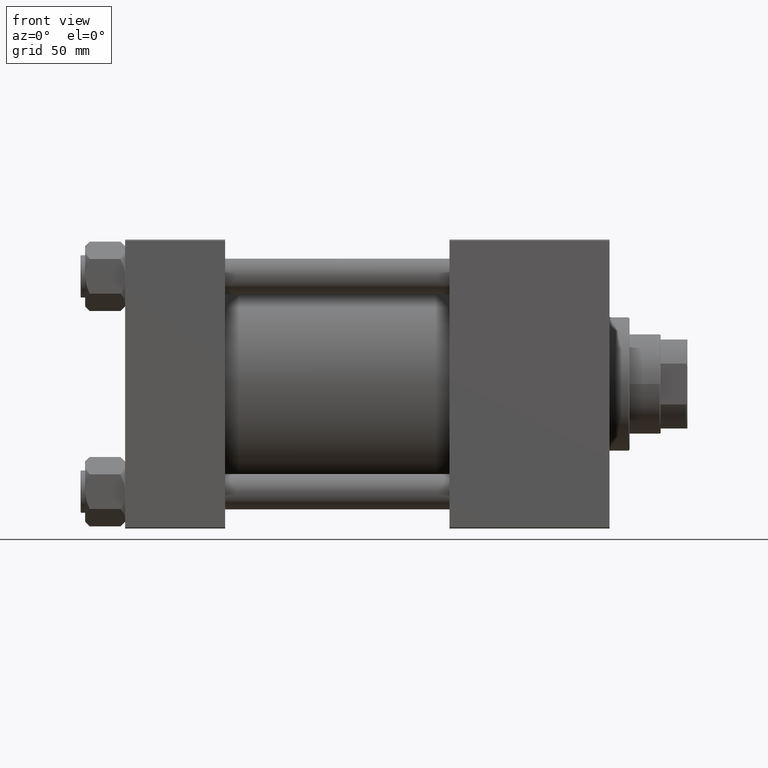
[diagram: clean part render]
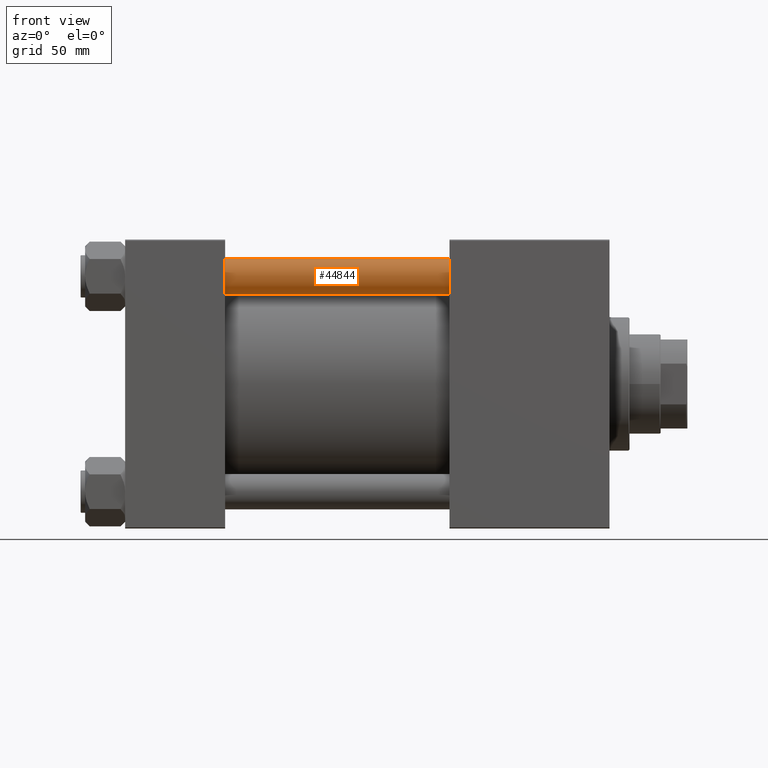
[diagram: same view with one face highlighted and labeled with its STEP entity id]
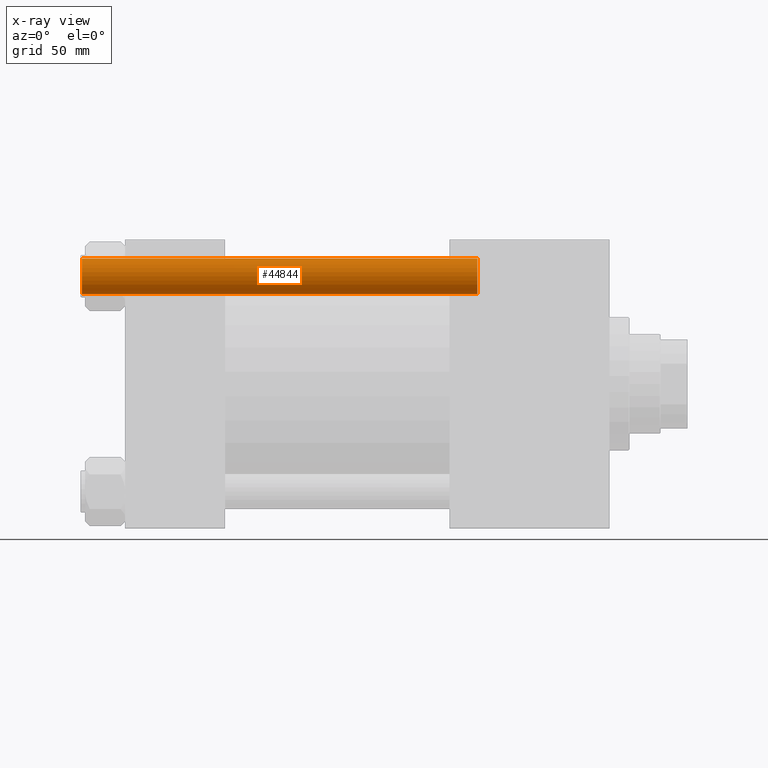
[diagram: x-ray of the same camera — body ghosted, the highlighted face saturated]
A machine part, front view. The second image highlights one B-rep face of the part: STEP entity #44844.
The next image is the same camera in x-ray: the body ghosted, the highlighted face saturated — about 0% of this face is hidden behind the body in this view.
In plain terms, the highlighted cylindrical surface (edge-blend (fillet) strip) has radius 8 mm, axis along (1, 0, -0).
Its self-contained STEP definition (entity closure, byte-faithful):
#3326 = DIRECTION ( 'NONE',  ( -0.000000000000000000, -0.000000000000000000, -1.000000000000000000 ) ) ;
#3579 = DIRECTION ( 'NONE',  ( -1.000000000000000000, 0.000000000000000000, 0.000000000000000000 ) ) ;
#6770 = CARTESIAN_POINT ( 'NONE',  ( -8.000000000000000000, 0.000000000000000000, 179.0000000000000000 ) ) ;
#7080 = VERTEX_POINT ( 'NONE', #41293 ) ;
#8941 = VERTEX_POINT ( 'NONE', #50670 ) ;
#10639 = LINE ( 'NONE', #6770, #21635 ) ;
#10958 = CIRCLE ( 'NONE', #18324, 8.000000000000000000 ) ;
#11604 = EDGE_CURVE ( 'NONE', #16857, #7080, #10958, .T. ) ;
#12505 = DIRECTION ( 'NONE',  ( -0.000000000000000000, -0.000000000000000000, 1.000000000000000000 ) ) ;
#12895 = CARTESIAN_POINT ( 'NONE',  ( 8.000000000000000000, 9.797174393178823685E-16, 179.0000000000000000 ) ) ;
#16121 = VECTOR ( 'NONE', #16494, 1000.000000000000000 ) ;
#16494 = DIRECTION ( 'NONE',  ( -0.000000000000000000, -0.000000000000000000, -1.000000000000000000 ) ) ;
#16857 = VERTEX_POINT ( 'NONE', #45170 ) ;
#18324 = AXIS2_PLACEMENT_3D ( 'NONE', #44282, #28587, #40162 ) ;
#18875 = EDGE_CURVE ( 'NONE', #8941, #27733, #49738, .T. ) ;
#19586 = EDGE_CURVE ( 'NONE', #7080, #8941, #48102, .T. ) ;
#21635 = VECTOR ( 'NONE', #38120, 1000.000000000000000 ) ;
#22993 = EDGE_LOOP ( 'NONE', ( #48178, #38166, #39535, #31892 ) ) ;
#23092 = FACE_OUTER_BOUND ( 'NONE', #22993, .T. ) ;
#27660 = DIRECTION ( 'NONE',  ( 1.000000000000000000, 0.000000000000000000, 0.000000000000000000 ) ) ;
#27733 = VERTEX_POINT ( 'NONE', #32492 ) ;
#28587 = DIRECTION ( 'NONE',  ( 0.000000000000000000, 0.000000000000000000, -1.000000000000000000 ) ) ;
#31372 = EDGE_CURVE ( 'NONE', #16857, #27733, #10639, .T. ) ;
#31892 = ORIENTED_EDGE ( 'NONE', *, *, #31372, .F. ) ;
#32492 = CARTESIAN_POINT ( 'NONE',  ( -8.000000000000000000, 0.000000000000000000, 0.5000000000001392220 ) ) ;
#38120 = DIRECTION ( 'NONE',  ( -0.000000000000000000, -0.000000000000000000, -1.000000000000000000 ) ) ;
#38166 = ORIENTED_EDGE ( 'NONE', *, *, #19586, .T. ) ;
#39285 = CYLINDRICAL_SURFACE ( 'NONE', #41655, 8.000000000000000000 ) ;
#39535 = ORIENTED_EDGE ( 'NONE', *, *, #18875, .T. ) ;
#40162 = DIRECTION ( 'NONE',  ( 1.000000000000000000, 0.000000000000000000, 0.000000000000000000 ) ) ;
#41293 = CARTESIAN_POINT ( 'NONE',  ( 8.000000000000000000, 9.797174393178823685E-16, 178.5000000000001137 ) ) ;
#41655 = AXIS2_PLACEMENT_3D ( 'NONE', #47261, #3326, #3579 ) ;
#44282 = CARTESIAN_POINT ( 'NONE',  ( 0.000000000000000000, 0.000000000000000000, 178.5000000000001137 ) ) ;
#44817 = AXIS2_PLACEMENT_3D ( 'NONE', #47718, #12505, #27660 ) ;
#44844 = ADVANCED_FACE ( 'NONE', ( #23092 ), #39285, .T. ) ;
#45170 = CARTESIAN_POINT ( 'NONE',  ( -8.000000000000000000, 0.000000000000000000, 178.5000000000001137 ) ) ;
#47261 = CARTESIAN_POINT ( 'NONE',  ( 0.000000000000000000, 0.000000000000000000, 179.0000000000000000 ) ) ;
#47718 = CARTESIAN_POINT ( 'NONE',  ( 0.000000000000000000, 0.000000000000000000, 0.5000000000001392220 ) ) ;
#48102 = LINE ( 'NONE', #12895, #16121 ) ;
#48178 = ORIENTED_EDGE ( 'NONE', *, *, #11604, .T. ) ;
#49738 = CIRCLE ( 'NONE', #44817, 8.000000000000000000 ) ;
#50670 = CARTESIAN_POINT ( 'NONE',  ( 8.000000000000000000, 9.797174393178823685E-16, 0.5000000000001392220 ) ) ;